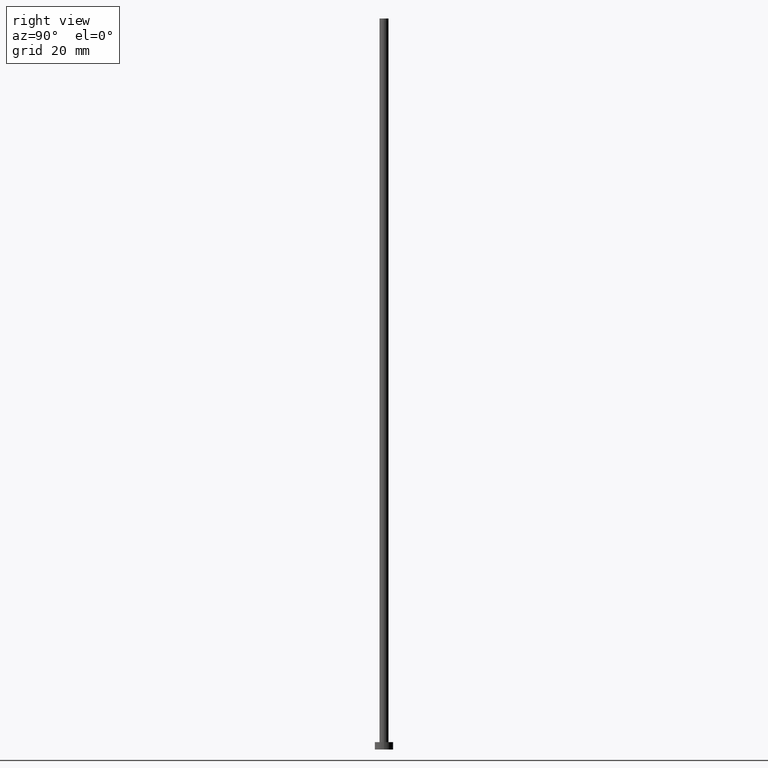
[diagram: clean part render]
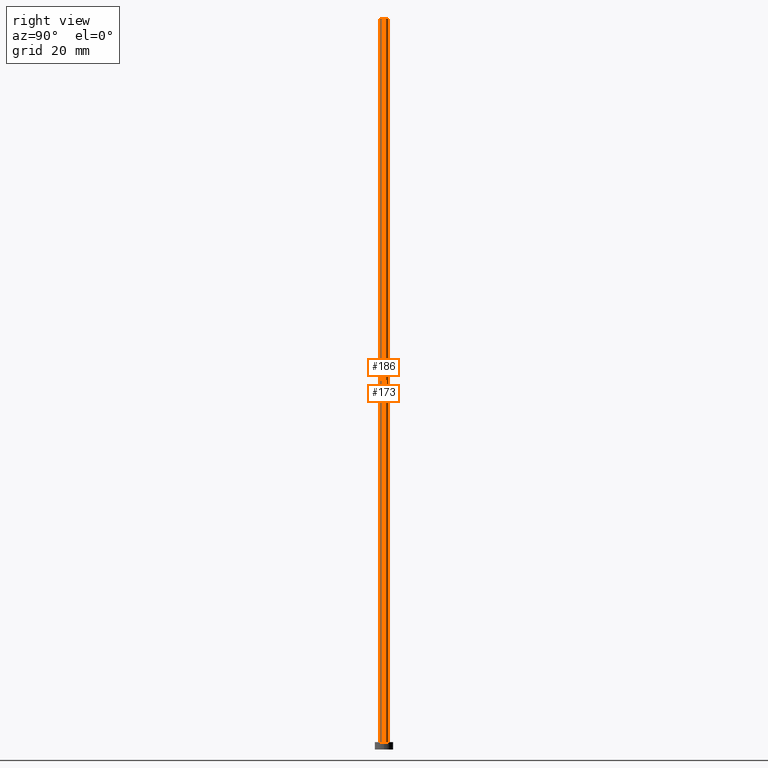
[diagram: same view with one multi-face feature highlighted, each face labeled with its STEP entity id]
A machine part, right view. The highlighted faces form ONE feature: a constant-radius fillet chain: 2 tangent blend faces with common blend radius 1.25 mm. The faces share edges in the B-rep.
Their STEP definitions:
[1] entity #173 (Cylinder):
#16 = DIRECTION ( 'NONE',  ( 0.000000000000000000, 0.000000000000000000, 1.000000000000000000 ) ) ;
#25 = CARTESIAN_POINT ( 'NONE',  ( 1.250000000000000000, 1.530808498934191571E-16, 200.0000000000000000 ) ) ;
#27 = AXIS2_PLACEMENT_3D ( 'NONE', #188, #63, #133 ) ;
#31 = CARTESIAN_POINT ( 'NONE',  ( 0.000000000000000000, 0.000000000000000000, 2.000000000000000000 ) ) ;
#33 = CARTESIAN_POINT ( 'NONE',  ( 0.000000000000000000, 0.000000000000000000, 200.0000000000000000 ) ) ;
#46 = FACE_OUTER_BOUND ( 'NONE', #112, .T. ) ;
#49 = CYLINDRICAL_SURFACE ( 'NONE', #234, 1.250000000000000000 ) ;
#55 = VERTEX_POINT ( 'NONE', #178 ) ;
#58 = VERTEX_POINT ( 'NONE', #125 ) ;
#63 = DIRECTION ( 'NONE',  ( 0.000000000000000000, 0.000000000000000000, 1.000000000000000000 ) ) ;
#65 = LINE ( 'NONE', #25, #196 ) ;
#68 = DIRECTION ( 'NONE',  ( 1.000000000000000000, 0.000000000000000000, 0.000000000000000000 ) ) ;
#77 = CARTESIAN_POINT ( 'NONE',  ( -1.250000000000000000, 0.000000000000000000, 200.0000000000000000 ) ) ;
#78 = ORIENTED_EDGE ( 'NONE', *, *, #99, .T. ) ;
#82 = ORIENTED_EDGE ( 'NONE', *, *, #134, .T. ) ;
#89 = AXIS2_PLACEMENT_3D ( 'NONE', #31, #16, #68 ) ;
#90 = VECTOR ( 'NONE', #181, 1000.000000000000000 ) ;
#96 = CARTESIAN_POINT ( 'NONE',  ( 1.250000000000000000, 1.530808498934191571E-16, 2.000000000000000000 ) ) ;
#99 = EDGE_CURVE ( 'NONE', #58, #151, #65, .T. ) ;
#100 = CARTESIAN_POINT ( 'NONE',  ( -1.250000000000000000, 0.000000000000000000, 200.0000000000000000 ) ) ;
#105 = DIRECTION ( 'NONE',  ( -0.000000000000000000, -0.000000000000000000, -1.000000000000000000 ) ) ;
#112 = EDGE_LOOP ( 'NONE', ( #131, #78, #82, #194 ) ) ;
#119 = EDGE_CURVE ( 'NONE', #161, #55, #140, .T. ) ;
#125 = CARTESIAN_POINT ( 'NONE',  ( 1.250000000000000000, 1.530808498934191571E-16, 200.0000000000000000 ) ) ;
#131 = ORIENTED_EDGE ( 'NONE', *, *, #199, .F. ) ;
#133 = DIRECTION ( 'NONE',  ( 1.000000000000000000, 0.000000000000000000, 0.000000000000000000 ) ) ;
#134 = EDGE_CURVE ( 'NONE', #151, #55, #164, .T. ) ;
#140 = LINE ( 'NONE', #100, #90 ) ;
#146 = DIRECTION ( 'NONE',  ( -1.000000000000000000, 0.000000000000000000, 0.000000000000000000 ) ) ;
#151 = VERTEX_POINT ( 'NONE', #96 ) ;
#152 = CIRCLE ( 'NONE', #27, 1.250000000000000000 ) ;
#161 = VERTEX_POINT ( 'NONE', #77 ) ;
#163 = DIRECTION ( 'NONE',  ( -0.000000000000000000, -0.000000000000000000, -1.000000000000000000 ) ) ;
#164 = CIRCLE ( 'NONE', #89, 1.250000000000000000 ) ;
#173 = ADVANCED_FACE ( 'NONE', ( #46 ), #49, .T. ) ;
#178 = CARTESIAN_POINT ( 'NONE',  ( -1.250000000000000000, 0.000000000000000000, 2.000000000000000000 ) ) ;
#181 = DIRECTION ( 'NONE',  ( -0.000000000000000000, -0.000000000000000000, -1.000000000000000000 ) ) ;
#188 = CARTESIAN_POINT ( 'NONE',  ( 0.000000000000000000, 0.000000000000000000, 200.0000000000000000 ) ) ;
#194 = ORIENTED_EDGE ( 'NONE', *, *, #119, .F. ) ;
#196 = VECTOR ( 'NONE', #163, 1000.000000000000000 ) ;
#199 = EDGE_CURVE ( 'NONE', #58, #161, #152, .T. ) ;
#234 = AXIS2_PLACEMENT_3D ( 'NONE', #33, #105, #146 ) ;
[2] entity #186 (Cylinder):
#11 = ORIENTED_EDGE ( 'NONE', *, *, #119, .T. ) ;
#14 = DIRECTION ( 'NONE',  ( 1.000000000000000000, 0.000000000000000000, 0.000000000000000000 ) ) ;
#20 = AXIS2_PLACEMENT_3D ( 'NONE', #153, #192, #40 ) ;
#25 = CARTESIAN_POINT ( 'NONE',  ( 1.250000000000000000, 1.530808498934191571E-16, 200.0000000000000000 ) ) ;
#39 = EDGE_CURVE ( 'NONE', #161, #58, #71, .T. ) ;
#40 = DIRECTION ( 'NONE',  ( -1.000000000000000000, 0.000000000000000000, 0.000000000000000000 ) ) ;
#55 = VERTEX_POINT ( 'NONE', #178 ) ;
#57 = AXIS2_PLACEMENT_3D ( 'NONE', #170, #255, #110 ) ;
#58 = VERTEX_POINT ( 'NONE', #125 ) ;
#65 = LINE ( 'NONE', #25, #196 ) ;
#71 = CIRCLE ( 'NONE', #57, 1.250000000000000000 ) ;
#77 = CARTESIAN_POINT ( 'NONE',  ( -1.250000000000000000, 0.000000000000000000, 200.0000000000000000 ) ) ;
#90 = VECTOR ( 'NONE', #181, 1000.000000000000000 ) ;
#92 = EDGE_CURVE ( 'NONE', #55, #151, #237, .T. ) ;
#96 = CARTESIAN_POINT ( 'NONE',  ( 1.250000000000000000, 1.530808498934191571E-16, 2.000000000000000000 ) ) ;
#99 = EDGE_CURVE ( 'NONE', #58, #151, #65, .T. ) ;
#100 = CARTESIAN_POINT ( 'NONE',  ( -1.250000000000000000, 0.000000000000000000, 200.0000000000000000 ) ) ;
#101 = ORIENTED_EDGE ( 'NONE', *, *, #39, .F. ) ;
#102 = CARTESIAN_POINT ( 'NONE',  ( 0.000000000000000000, 0.000000000000000000, 2.000000000000000000 ) ) ;
#110 = DIRECTION ( 'NONE',  ( 1.000000000000000000, 0.000000000000000000, 0.000000000000000000 ) ) ;
#119 = EDGE_CURVE ( 'NONE', #161, #55, #140, .T. ) ;
#124 = AXIS2_PLACEMENT_3D ( 'NONE', #102, #241, #14 ) ;
#125 = CARTESIAN_POINT ( 'NONE',  ( 1.250000000000000000, 1.530808498934191571E-16, 200.0000000000000000 ) ) ;
#140 = LINE ( 'NONE', #100, #90 ) ;
#151 = VERTEX_POINT ( 'NONE', #96 ) ;
#153 = CARTESIAN_POINT ( 'NONE',  ( 0.000000000000000000, 0.000000000000000000, 200.0000000000000000 ) ) ;
#155 = ORIENTED_EDGE ( 'NONE', *, *, #92, .T. ) ;
#161 = VERTEX_POINT ( 'NONE', #77 ) ;
#163 = DIRECTION ( 'NONE',  ( -0.000000000000000000, -0.000000000000000000, -1.000000000000000000 ) ) ;
#170 = CARTESIAN_POINT ( 'NONE',  ( 0.000000000000000000, 0.000000000000000000, 200.0000000000000000 ) ) ;
#178 = CARTESIAN_POINT ( 'NONE',  ( -1.250000000000000000, 0.000000000000000000, 2.000000000000000000 ) ) ;
#181 = DIRECTION ( 'NONE',  ( -0.000000000000000000, -0.000000000000000000, -1.000000000000000000 ) ) ;
#186 = ADVANCED_FACE ( 'NONE', ( #252 ), #225, .T. ) ;
#192 = DIRECTION ( 'NONE',  ( -0.000000000000000000, -0.000000000000000000, -1.000000000000000000 ) ) ;
#196 = VECTOR ( 'NONE', #163, 1000.000000000000000 ) ;
#214 = ORIENTED_EDGE ( 'NONE', *, *, #99, .F. ) ;
#225 = CYLINDRICAL_SURFACE ( 'NONE', #20, 1.250000000000000000 ) ;
#232 = EDGE_LOOP ( 'NONE', ( #214, #101, #11, #155 ) ) ;
#237 = CIRCLE ( 'NONE', #124, 1.250000000000000000 ) ;
#241 = DIRECTION ( 'NONE',  ( 0.000000000000000000, 0.000000000000000000, 1.000000000000000000 ) ) ;
#252 = FACE_OUTER_BOUND ( 'NONE', #232, .T. ) ;
#255 = DIRECTION ( 'NONE',  ( 0.000000000000000000, 0.000000000000000000, 1.000000000000000000 ) ) ;